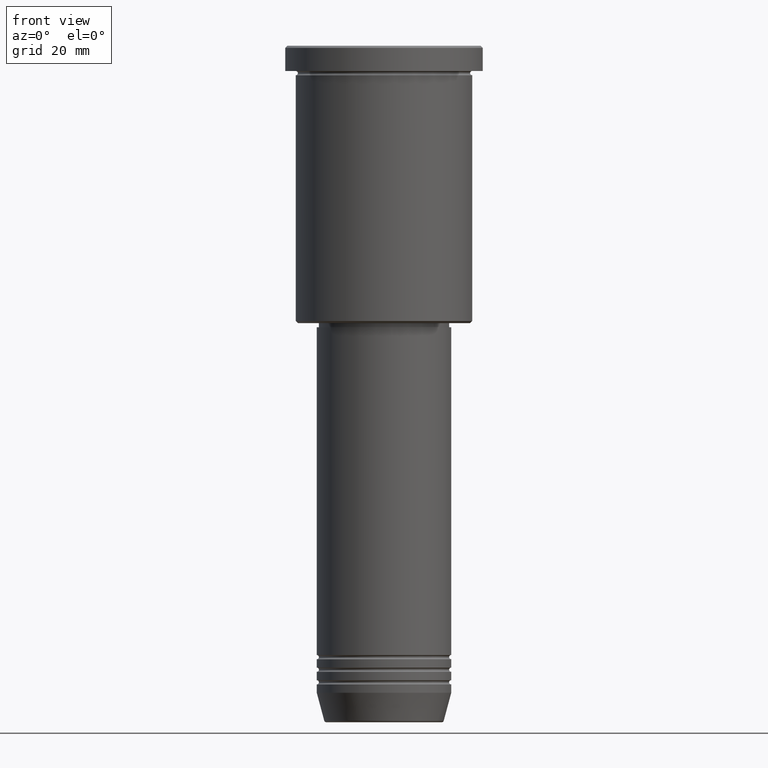
[diagram: clean part render]
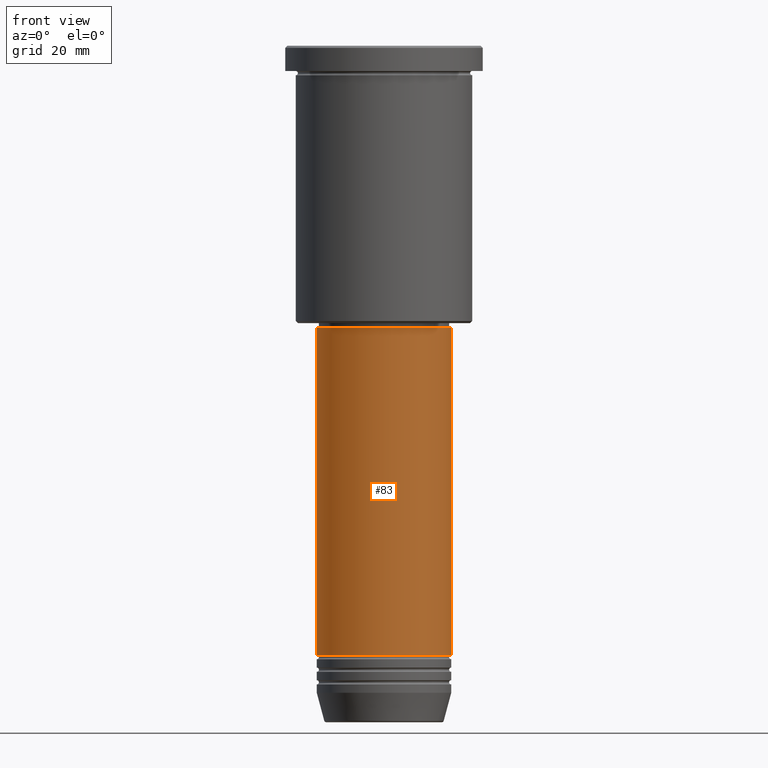
[diagram: same view with one face highlighted and labeled with its STEP entity id]
A machine part, front view. The second image highlights one B-rep face of the part: STEP entity #83.
In plain terms, the highlighted cylindrical surface (partial cylindrical patch) has radius 16 mm, axis along (-0, -0, 1).
Its self-contained STEP definition (entity closure, byte-faithful):
#3 = CARTESIAN_POINT ( 'NONE',  ( -16.00000000000000000, 1.959434878635765131E-15, -67.00000000000000000 ) ) ;
#83 = ADVANCED_FACE ( 'NONE', ( #591 ), #657, .T. ) ;
#135 = DIRECTION ( 'NONE',  ( -0.000000000000000000, -0.000000000000000000, 1.000000000000000000 ) ) ;
#180 = LINE ( 'NONE', #540, #726 ) ;
#183 = EDGE_CURVE ( 'NONE', #1063, #1157, #1175, .T. ) ;
#191 = DIRECTION ( 'NONE',  ( 1.000000000000000000, 0.000000000000000000, 0.000000000000000000 ) ) ;
#242 = CARTESIAN_POINT ( 'NONE',  ( 0.000000000000000000, 0.000000000000000000, -144.9999999999999716 ) ) ;
#247 = VERTEX_POINT ( 'NONE', #3 ) ;
#260 = CIRCLE ( 'NONE', #415, 16.00000000000000000 ) ;
#281 = DIRECTION ( 'NONE',  ( -0.000000000000000000, -0.000000000000000000, 1.000000000000000000 ) ) ;
#358 = CARTESIAN_POINT ( 'NONE',  ( 0.000000000000000000, 0.000000000000000000, -67.00000000000000000 ) ) ;
#396 = ORIENTED_EDGE ( 'NONE', *, *, #1159, .F. ) ;
#415 = AXIS2_PLACEMENT_3D ( 'NONE', #358, #281, #802 ) ;
#540 = CARTESIAN_POINT ( 'NONE',  ( -16.00000000000000000, 1.959434878635765131E-15, 0.000000000000000000 ) ) ;
#591 = FACE_OUTER_BOUND ( 'NONE', #772, .T. ) ;
#600 = DIRECTION ( 'NONE',  ( -0.000000000000000000, -0.000000000000000000, 1.000000000000000000 ) ) ;
#616 = EDGE_CURVE ( 'NONE', #1143, #1063, #870, .T. ) ;
#628 = DIRECTION ( 'NONE',  ( -0.000000000000000000, -0.000000000000000000, 1.000000000000000000 ) ) ;
#657 = CYLINDRICAL_SURFACE ( 'NONE', #951, 16.00000000000000000 ) ;
#678 = VECTOR ( 'NONE', #628, 1000.000000000000000 ) ;
#726 = VECTOR ( 'NONE', #922, 1000.000000000000000 ) ;
#738 = CARTESIAN_POINT ( 'NONE',  ( 16.00000000000000000, 0.000000000000000000, -67.00000000000000000 ) ) ;
#747 = ORIENTED_EDGE ( 'NONE', *, *, #945, .F. ) ;
#772 = EDGE_LOOP ( 'NONE', ( #396, #1147, #1104, #747 ) ) ;
#802 = DIRECTION ( 'NONE',  ( 1.000000000000000000, 0.000000000000000000, 0.000000000000000000 ) ) ;
#816 = CARTESIAN_POINT ( 'NONE',  ( 16.00000000000000000, 0.000000000000000000, 0.000000000000000000 ) ) ;
#820 = CARTESIAN_POINT ( 'NONE',  ( -16.00000000000000000, 1.959434878635765131E-15, -144.9999999999999716 ) ) ;
#823 = CARTESIAN_POINT ( 'NONE',  ( 16.00000000000000000, 0.000000000000000000, -144.9999999999999716 ) ) ;
#870 = CIRCLE ( 'NONE', #890, 16.00000000000000000 ) ;
#876 = CARTESIAN_POINT ( 'NONE',  ( 0.000000000000000000, 0.000000000000000000, 0.000000000000000000 ) ) ;
#890 = AXIS2_PLACEMENT_3D ( 'NONE', #242, #600, #191 ) ;
#922 = DIRECTION ( 'NONE',  ( -0.000000000000000000, -0.000000000000000000, 1.000000000000000000 ) ) ;
#945 = EDGE_CURVE ( 'NONE', #247, #1157, #260, .T. ) ;
#951 = AXIS2_PLACEMENT_3D ( 'NONE', #876, #135, #965 ) ;
#965 = DIRECTION ( 'NONE',  ( 1.000000000000000000, 0.000000000000000000, 0.000000000000000000 ) ) ;
#1063 = VERTEX_POINT ( 'NONE', #823 ) ;
#1104 = ORIENTED_EDGE ( 'NONE', *, *, #183, .T. ) ;
#1143 = VERTEX_POINT ( 'NONE', #820 ) ;
#1147 = ORIENTED_EDGE ( 'NONE', *, *, #616, .T. ) ;
#1157 = VERTEX_POINT ( 'NONE', #738 ) ;
#1159 = EDGE_CURVE ( 'NONE', #1143, #247, #180, .T. ) ;
#1175 = LINE ( 'NONE', #816, #678 ) ;